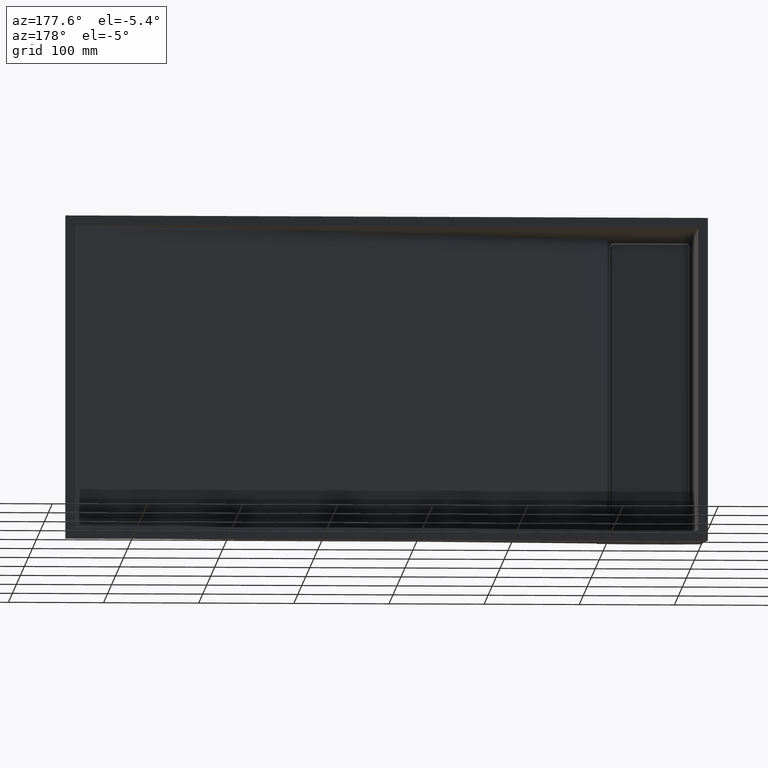
[diagram: clean part render]
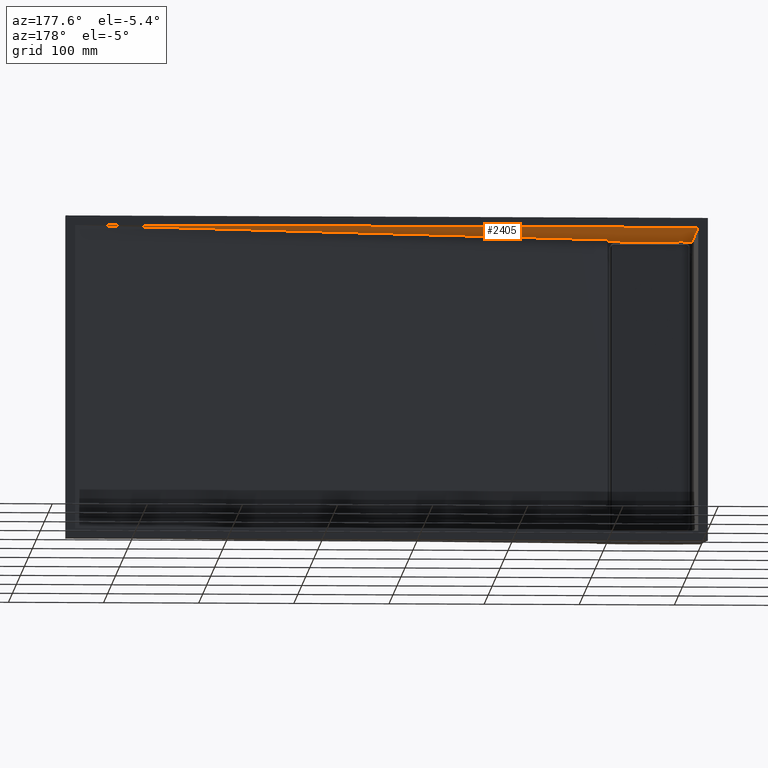
[diagram: same view with one face highlighted and labeled with its STEP entity id]
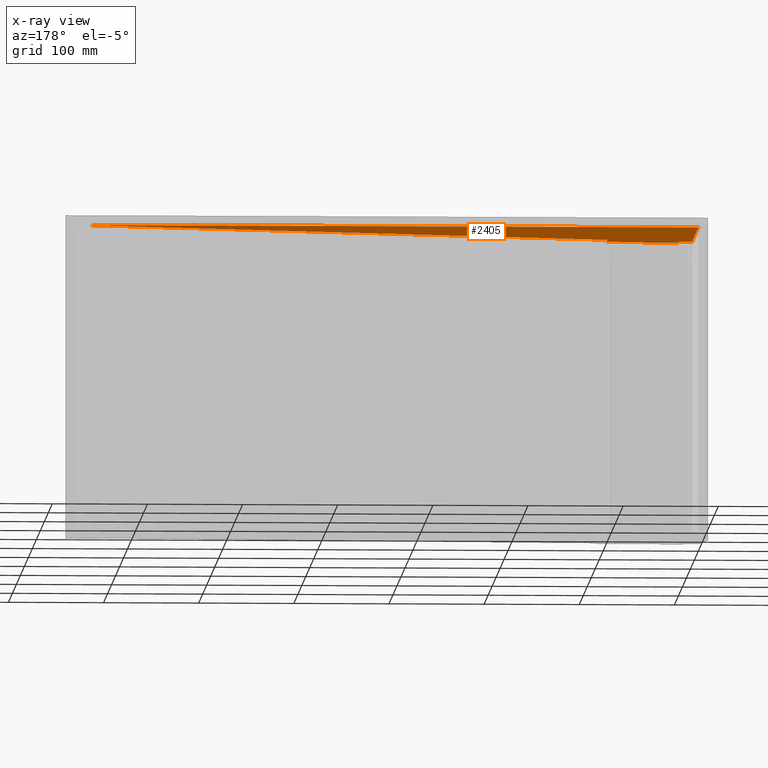
[diagram: x-ray of the same camera — body ghosted, the highlighted face saturated]
A machine part, auxiliary view. The second image highlights one B-rep face of the part: STEP entity #2405.
The next image is the same camera in x-ray: the body ghosted, the highlighted face saturated — about 0% of this face is hidden behind the body in this view.
In plain terms, the highlighted planar face has unit normal (0, -0.0555, 0.9985).
Its self-contained STEP definition (entity closure, byte-faithful):
#56 = CARTESIAN_POINT ( 'NONE',  ( 71.81682146360701300, -107.0356404674479900, -5.946424470413776800 ) ) ;
#195 = CARTESIAN_POINT ( 'NONE',  ( 76.81682146348093500, -107.0356038962750300, -5.946422438681958400 ) ) ;
#303 = DIRECTION ( 'NONE',  ( -1.000000000000000000, 0.0000000000000000000, 4.818676322157799500E-017 ) ) ;
#317 = CARTESIAN_POINT ( 'NONE',  ( -2.730583249222752600E-016, -102.0000000000000000, -5.666666666666666100 ) ) ;
#590 = EDGE_CURVE ( 'NONE', #2295, #5294, #1487, .T. ) ;
#847 = CARTESIAN_POINT ( 'NONE',  ( 77.66666666666667100, -102.0000000000000000, -5.666666666666668700 ) ) ;
#852 = EDGE_CURVE ( 'NONE', #5294, #5641, #3233, .T. ) ;
#911 = CARTESIAN_POINT ( 'NONE',  ( 655.0000000000000000, 0.0000000000000000000, 0.0000000000000000000 ) ) ;
#925 = CARTESIAN_POINT ( 'NONE',  ( 76.81682146348093500, -107.0356038962750300, -5.946422438681958400 ) ) ;
#934 = EDGE_CURVE ( 'NONE', #6834, #3544, #7046, .T. ) ;
#956 = CARTESIAN_POINT ( 'NONE',  ( 77.19269611074651000, -107.0237460475791000, -5.945763669309926900 ) ) ;
#1021 = LINE ( 'NONE', #317, #1032 ) ;
#1032 = VECTOR ( 'NONE', #303, 1000.000000000000000 ) ;
#1116 = VECTOR ( 'NONE', #6076, 1000.000000000000100 ) ;
#1201 = CARTESIAN_POINT ( 'NONE',  ( 16.05555555555559300, -107.0000000000000000, -5.944444444444444600 ) ) ;
#1257 = AXIS2_PLACEMENT_3D ( 'NONE', #3880, #5182, #2700 ) ;
#1280 = ORIENTED_EDGE ( 'NONE', *, *, #2675, .T. ) ;
#1381 = FACE_OUTER_BOUND ( 'NONE', #5743, .T. ) ;
#1487 = B_SPLINE_CURVE_WITH_KNOTS ( 'NONE', 3,
 ( #2514, #4235, #2667, #2719 ),
 .UNSPECIFIED., .F., .F.,
 ( 4, 4 ),
 ( 6.938893903907228400E-018, 0.001128186658797296000 ),
 .UNSPECIFIED. ) ;
#1623 = CARTESIAN_POINT ( 'NONE',  ( 92.00000000000004300, -445.9239393765137200, -24.77355218758409100 ) ) ;
#1645 = VERTEX_POINT ( 'NONE', #2589 ) ;
#1658 = CARTESIAN_POINT ( 'NONE',  ( 77.94444444444445700, -107.0000000000000000, -5.944444444444439300 ) ) ;
#1693 = VERTEX_POINT ( 'NONE', #3901 ) ;
#2159 = DIRECTION ( 'NONE',  ( -1.000000000000000000, 0.0000000000000000000, 4.818676322157799500E-017 ) ) ;
#2249 = CARTESIAN_POINT ( 'NONE',  ( 77.56857043458796900, -107.0118779742695500, -5.945104331903867700 ) ) ;
#2265 = CARTESIAN_POINT ( 'NONE',  ( -2.730583249222752600E-016, -102.0000000000000000, -5.666666666666666100 ) ) ;
#2295 = VERTEX_POINT ( 'NONE', #5815 ) ;
#2405 = ADVANCED_FACE ( 'NONE', ( #1381 ), #3254, .F. ) ;
#2445 = VERTEX_POINT ( 'NONE', #3934 ) ;
#2514 = CARTESIAN_POINT ( 'NONE',  ( 17.18317853651911500, -107.0356038962750100, -5.946422438681945100 ) ) ;
#2589 = CARTESIAN_POINT ( 'NONE',  ( 2.266666666666703900, -102.0000000000000000, -5.666666666666667000 ) ) ;
#2667 = CARTESIAN_POINT ( 'NONE',  ( 16.43142956541207800, -107.0118779742695700, -5.945104331903863200 ) ) ;
#2675 = EDGE_CURVE ( 'NONE', #7493, #1693, #3701, .T. ) ;
#2687 = EDGE_CURVE ( 'NONE', #6834, #6444, #7321, .T. ) ;
#2700 = DIRECTION ( 'NONE',  ( 0.0000000000000000000, -0.9984603532054123800, -0.05547001962252291100 ) ) ;
#2719 = CARTESIAN_POINT ( 'NONE',  ( 16.05555555555559300, -107.0000000000000000, -5.944444444444444600 ) ) ;
#2724 = CARTESIAN_POINT ( 'NONE',  ( 16.30061349693255200, -102.5889570552147200, -5.699386503067485100 ) ) ;
#2766 = LINE ( 'NONE', #6442, #4408 ) ;
#2986 = DIRECTION ( 'NONE',  ( 0.05538487756217112800, 0.9969277961190803300, 0.05538487756217112800 ) ) ;
#3233 = LINE ( 'NONE', #2724, #7607 ) ;
#3254 = PLANE ( 'NONE',  #1257 ) ;
#3263 = DIRECTION ( 'NONE',  ( 0.02218254820132629600, -0.9982146690596642700, -0.05545637050331468600 ) ) ;
#3289 = ORIENTED_EDGE ( 'NONE', *, *, #7398, .T. ) ;
#3329 = VECTOR ( 'NONE', #6381, 1000.000000000000200 ) ;
#3483 = B_SPLINE_CURVE_WITH_KNOTS ( 'NONE', 3,
 ( #195, #56, #8024, #7780, #7748, #7691, #7641, #7536, #7515, #7289 ),
 .UNSPECIFIED., .F., .F.,
 ( 4, 3, 3, 4 ),
 ( 1.387778780781445700E-017, 0.01500000000002419400, 0.03000000000005161700, 0.05963364292757488600 ),
 .UNSPECIFIED. ) ;
#3544 = VERTEX_POINT ( 'NONE', #847 ) ;
#3701 = B_SPLINE_CURVE_WITH_KNOTS ( 'NONE', 3,
 ( #1658, #2249, #956, #925 ),
 .UNSPECIFIED., .F., .F.,
 ( 4, 4 ),
 ( 1.387778780781445700E-017, 0.001128186658797282100 ),
 .UNSPECIFIED. ) ;
#3716 = ORIENTED_EDGE ( 'NONE', *, *, #3985, .F. ) ;
#3810 = ORIENTED_EDGE ( 'NONE', *, *, #6417, .T. ) ;
#3880 = CARTESIAN_POINT ( 'NONE',  ( 2.000000000000038200, -90.00000000000000000, -5.000000000000000000 ) ) ;
#3894 = ORIENTED_EDGE ( 'NONE', *, *, #2687, .F. ) ;
#3901 = CARTESIAN_POINT ( 'NONE',  ( 76.81682146348093500, -107.0356038962750300, -5.946422438681958400 ) ) ;
#3934 = CARTESIAN_POINT ( 'NONE',  ( 0.0000000000000000000, 0.0000000000000000000, 0.0000000000000000000 ) ) ;
#3985 = EDGE_CURVE ( 'NONE', #2445, #1645, #8070, .T. ) ;
#4050 = CARTESIAN_POINT ( 'NONE',  ( 16.33333333333336800, -102.0000000000000000, -5.666666666666667000 ) ) ;
#4235 = CARTESIAN_POINT ( 'NONE',  ( 16.80730388925353600, -107.0237460475791100, -5.945763669309948300 ) ) ;
#4247 = CARTESIAN_POINT ( 'NONE',  ( 0.0000000000000000000, 0.0000000000000000000, 0.0000000000000000000 ) ) ;
#4408 = VECTOR ( 'NONE', #6857, 1000.000000000000100 ) ;
#4757 = VECTOR ( 'NONE', #3263, 999.9999999999998900 ) ;
#5175 = VECTOR ( 'NONE', #2159, 1000.000000000000000 ) ;
#5182 = DIRECTION ( 'NONE',  ( 4.811257262604234000E-017, -0.05547001962252291800, 0.9984603532054124900 ) ) ;
#5294 = VERTEX_POINT ( 'NONE', #1201 ) ;
#5537 = EDGE_CURVE ( 'NONE', #2445, #8004, #7894, .T. ) ;
#5641 = VERTEX_POINT ( 'NONE', #4050 ) ;
#5743 = EDGE_LOOP ( 'NONE', ( #3894, #7925, #7495, #1280, #3810, #7778, #6926, #3289, #3716, #7000, #7717 ) ) ;
#5815 = CARTESIAN_POINT ( 'NONE',  ( 17.18317853651911500, -107.0356038962750100, -5.946422438681945100 ) ) ;
#6076 = DIRECTION ( 'NONE',  ( -0.9874245432834220000, -0.1578476179316305200, -0.008769312107312814500 ) ) ;
#6247 = CARTESIAN_POINT ( 'NONE',  ( 655.0000000000000000, 0.0000000000000000000, 0.0000000000000000000 ) ) ;
#6381 = DIRECTION ( 'NONE',  ( 7.449688664677521200E-018, 0.9984603532054123800, 0.05547001962252291100 ) ) ;
#6417 = EDGE_CURVE ( 'NONE', #1693, #2295, #3483, .T. ) ;
#6442 = CARTESIAN_POINT ( 'NONE',  ( 77.41104294478530800, -97.39877300613495900, -5.411042944785283000 ) ) ;
#6444 = VERTEX_POINT ( 'NONE', #8110 ) ;
#6834 = VERTEX_POINT ( 'NONE', #7022 ) ;
#6857 = DIRECTION ( 'NONE',  ( 0.05538487756217112800, -0.9969277961190803300, -0.05538487756217112800 ) ) ;
#6926 = ORIENTED_EDGE ( 'NONE', *, *, #852, .T. ) ;
#6937 = EDGE_CURVE ( 'NONE', #3544, #7493, #2766, .T. ) ;
#6991 = EDGE_CURVE ( 'NONE', #8004, #6444, #7730, .T. ) ;
#7000 = ORIENTED_EDGE ( 'NONE', *, *, #5537, .T. ) ;
#7022 = CARTESIAN_POINT ( 'NONE',  ( 92.00000000000004300, -102.0000000000000000, -5.666666666666670500 ) ) ;
#7046 = LINE ( 'NONE', #2265, #5175 ) ;
#7289 = CARTESIAN_POINT ( 'NONE',  ( 17.18317853651911500, -107.0356038962750100, -5.946422438681945100 ) ) ;
#7321 = LINE ( 'NONE', #1623, #3329 ) ;
#7329 = VECTOR ( 'NONE', #8094, 1000.000000000000000 ) ;
#7398 = EDGE_CURVE ( 'NONE', #5641, #1645, #1021, .T. ) ;
#7474 = CARTESIAN_POINT ( 'NONE',  ( 77.94444444444445700, -107.0000000000000000, -5.944444444444439300 ) ) ;
#7493 = VERTEX_POINT ( 'NONE', #7474 ) ;
#7495 = ORIENTED_EDGE ( 'NONE', *, *, #6937, .T. ) ;
#7515 = CARTESIAN_POINT ( 'NONE',  ( 27.06105951204488500, -107.0356761454137900, -5.946426452522989500 ) ) ;
#7536 = CARTESIAN_POINT ( 'NONE',  ( 36.93894048789452000, -107.0357138225825900, -5.946428545699034500 ) ) ;
#7607 = VECTOR ( 'NONE', #2986, 1000.000000000000100 ) ;
#7641 = CARTESIAN_POINT ( 'NONE',  ( 46.81682146368531500, -107.0357142814592600, -5.946428571192183400 ) ) ;
#7691 = CARTESIAN_POINT ( 'NONE',  ( 51.81682146369402600, -107.0357145137341200, -5.946428584096342000 ) ) ;
#7717 = ORIENTED_EDGE ( 'NONE', *, *, #6991, .T. ) ;
#7730 = LINE ( 'NONE', #6247, #1116 ) ;
#7748 = CARTESIAN_POINT ( 'NONE',  ( 56.81682146371171200, -107.0357052239121300, -5.946428067995121600 ) ) ;
#7778 = ORIENTED_EDGE ( 'NONE', *, *, #590, .T. ) ;
#7780 = CARTESIAN_POINT ( 'NONE',  ( 61.81682146368605400, -107.0356867121544200, -5.946427039564137700 ) ) ;
#7894 = LINE ( 'NONE', #8149, #7329 ) ;
#7925 = ORIENTED_EDGE ( 'NONE', *, *, #934, .T. ) ;
#8004 = VERTEX_POINT ( 'NONE', #911 ) ;
#8024 = CARTESIAN_POINT ( 'NONE',  ( 66.81682146365975000, -107.0356682003966900, -5.946426011133152800 ) ) ;
#8070 = LINE ( 'NONE', #4247, #4757 ) ;
#8094 = DIRECTION ( 'NONE',  ( 1.000000000000000000, 0.0000000000000000000, 0.0000000000000000000 ) ) ;
#8110 = CARTESIAN_POINT ( 'NONE',  ( 92.00000000000004300, -90.00000000000000000, -5.000000000000004400 ) ) ;
#8149 = CARTESIAN_POINT ( 'NONE',  ( 0.0000000000000000000, 0.0000000000000000000, 0.0000000000000000000 ) ) ;